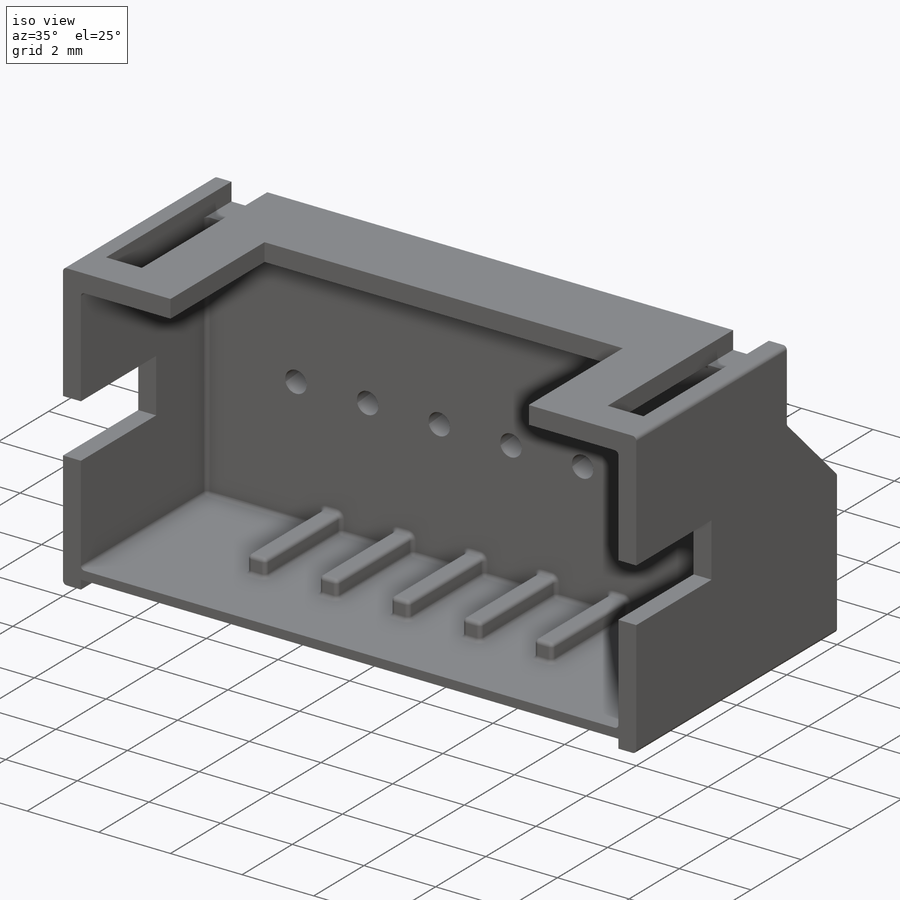
[diagram: iso view]
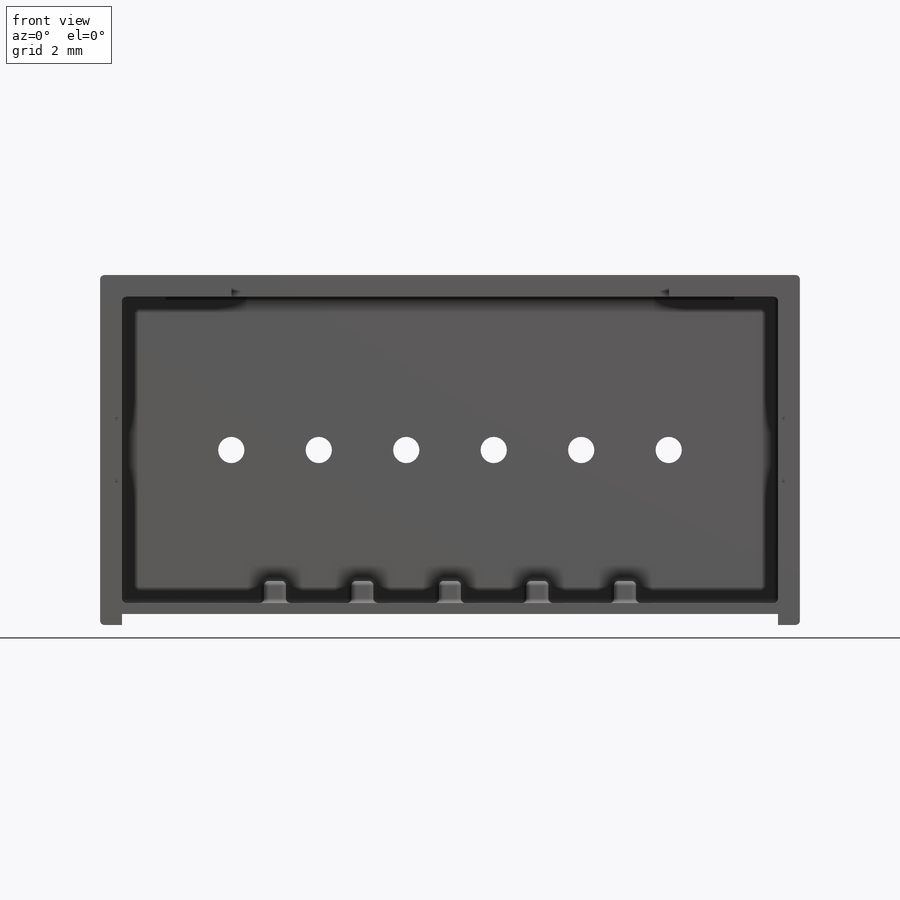
[diagram: front view]
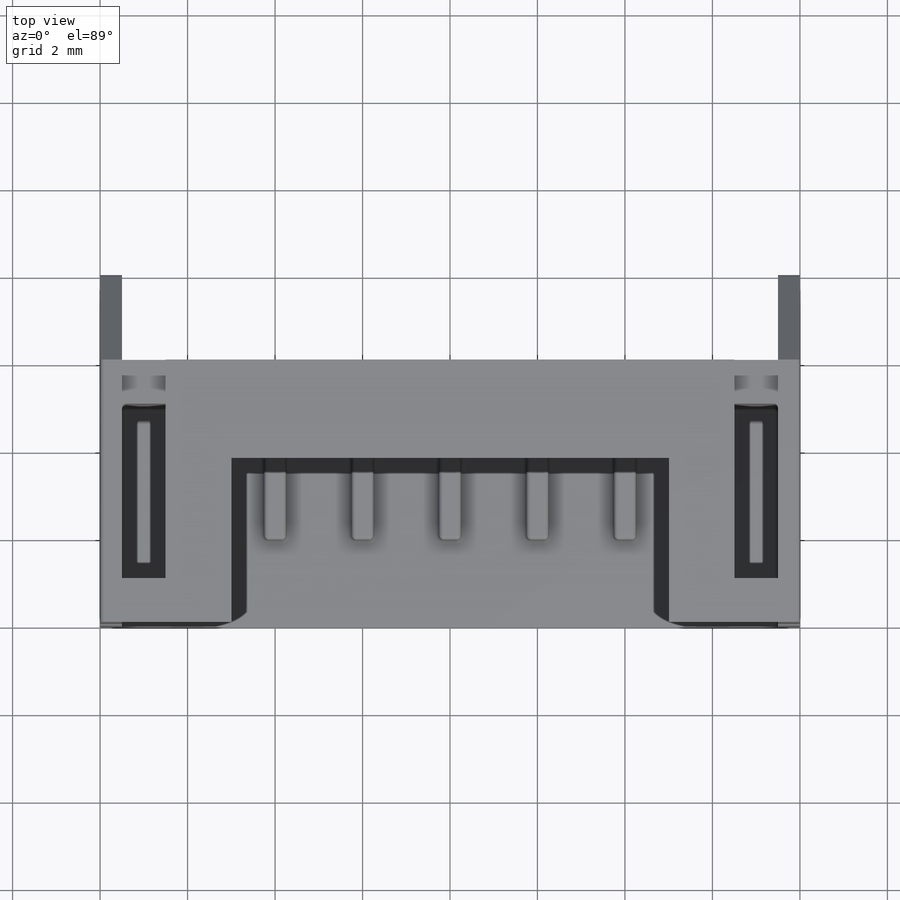
[diagram: top view]
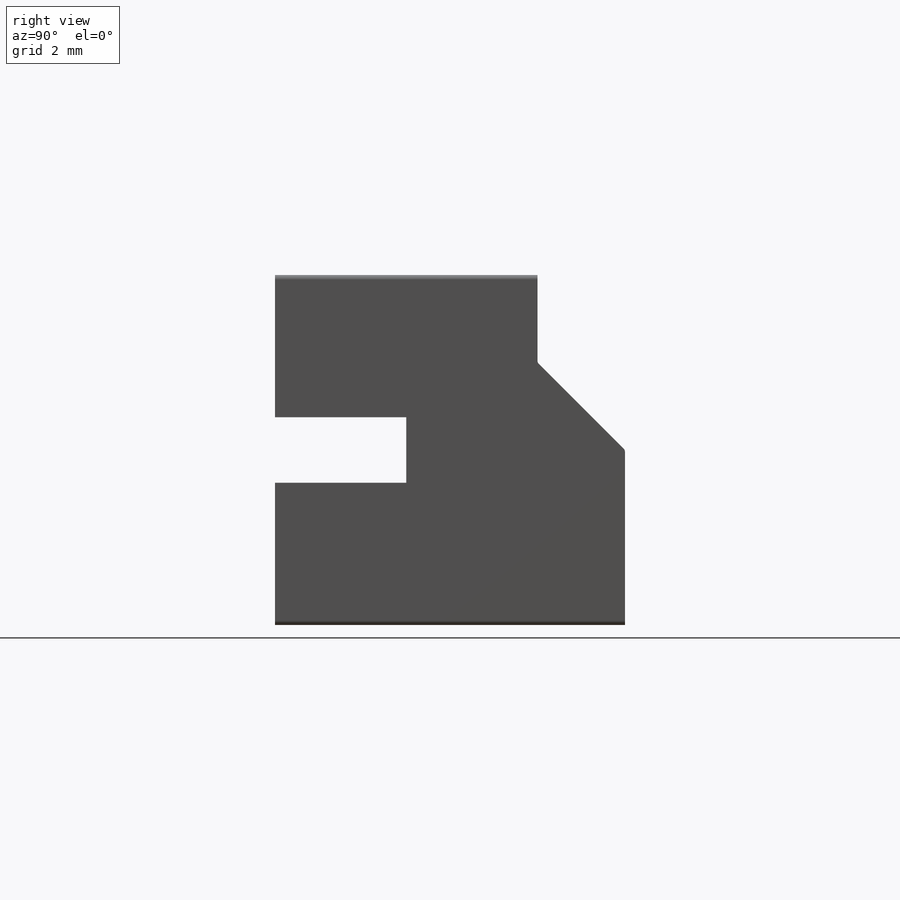
[diagram: right view]
SOLIDWORKS PART (.sldprt)
format: sldprt  version: not decoded by parser v0  size: 523,776 bytes
history: native  units: mm
features: sketch x9, cut_extrude x7, plane x3, extrude x2, material x1, fillet x1 (+10 scaffold rows collapsed)
feature tree (33):
  scaffold x10  (default folders/planes/origin — collapsed)
  material  "Material <not specified>"
  plane  "Ön Düzlem"
  plane  "Üst Düzlem"
  plane  "Sağ Düzlem"
  sketch  "Sketch1"  dims[c1.D3=0.6mm c1.D5=0.6mm c1.D6=0.6mm c1.D1=8.0mm c1.D2=16.0mm c2.D3=~16.238116mm c2.D5=3.0mm c2.D6=4.0mm c2.D4=6.0]
  extrude  "Boss-Extrude1"  Depth=8mm
  sketch  "Sketch2"  dims[D1=0.5mm D2=0.5mm D3=0.5mm D4=0.5mm]
  cut_extrude  "Cut-Extrude1"  Depth=5mm
  sketch  "Sketch4"  dims[D1=2.0mm D2=0.5mm D3=0.5mm]
  cut_extrude  "Cut-Extrude2"  [1 undecoded]
  sketch  "Sketch5"  dims[D1=2.0mm D2=2.0mm D3=4.0mm]
  cut_extrude  "Cut-Extrude3"  [1 undecoded]
  sketch  "Sketch6"  dims[D1=10.0mm D2=3.0mm D3=~5.749205mm]
  cut_extrude  "Cut-Extrude4"  [1 undecoded]
  sketch  "Sketch7"  dims[D1=0.5mm D2=1.0mm D3=5.0mm]
  cut_extrude  "Cut-Extrude5"  Depth=0.5mm
  sketch  "Sketch8"  dims[D1=0.5mm D2=3.75mm D4=3.0mm D3=5.0]
  extrude  "Boss-Extrude2"  Depth=0.5mm
  sketch  "Sketch9"  dims[c1.D1=3.0mm c1.D2=1.5mm c1.D3=1.5mm c2.D3=90.0deg c3.D3=~3.357839mm c3.D4=8.0mm c4.D3=3.25mm c4.D4=3.0mm]
  cut_extrude  "Cut-Extrude6"  [1 undecoded]
  sketch  "Sketch10"  dims[D1=0.0mm D2=0.25mm]
  cut_extrude  "Cut-Extrude7"  [1 undecoded]
  fillet  "Fillet1"  Radius=0.1mm
decode coverage: 14 of 19 modeling features carry decoded parameters
note: ~ marks probable driven/reference dimensions
note: 5 parameter values undecoded
summary: no parameter record found for 5 features
note: suppression state not decoded; provenance and decode notes live in map.json
